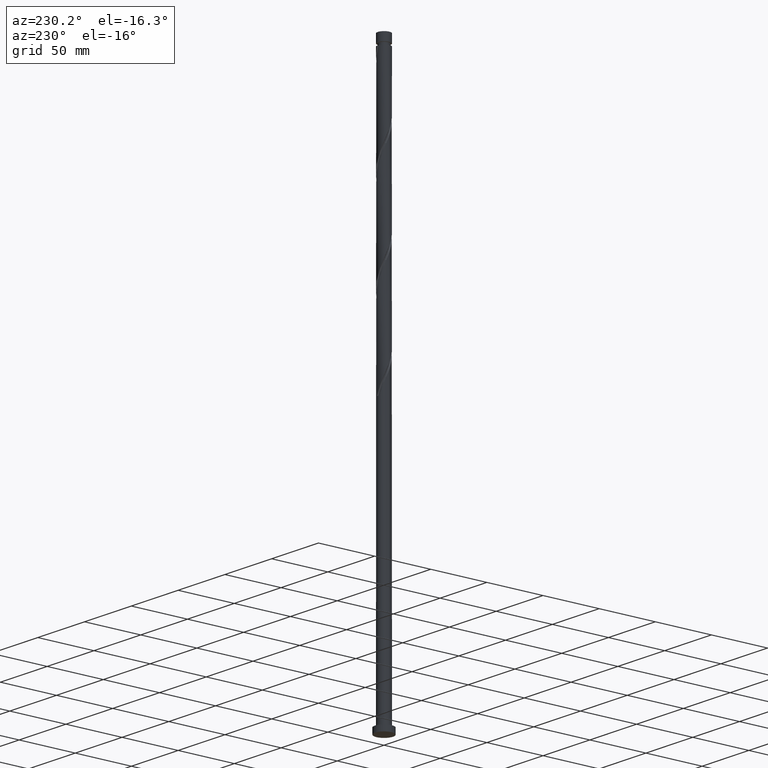
[diagram: clean part render]
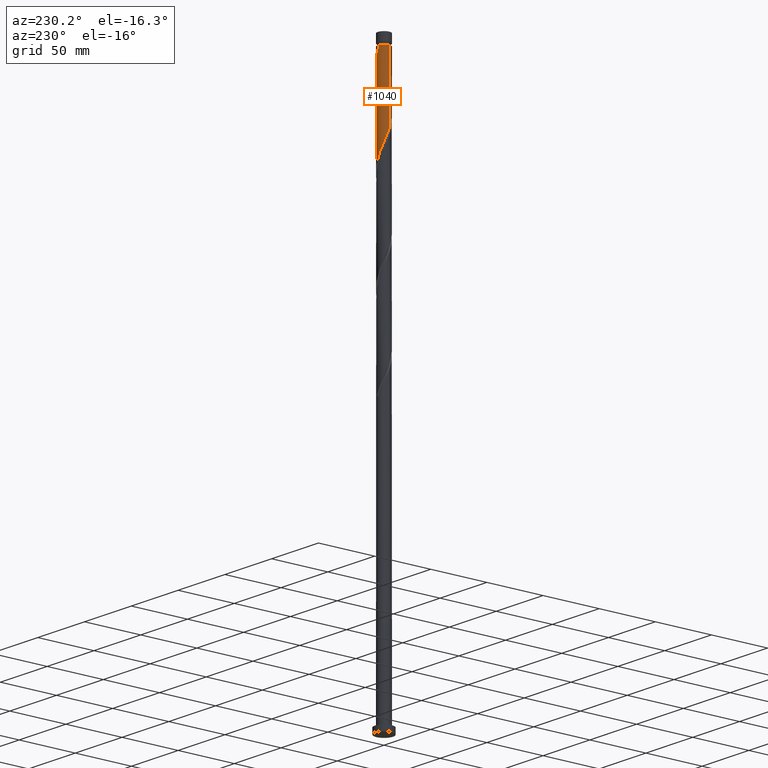
[diagram: same view with one face highlighted and labeled with its STEP entity id]
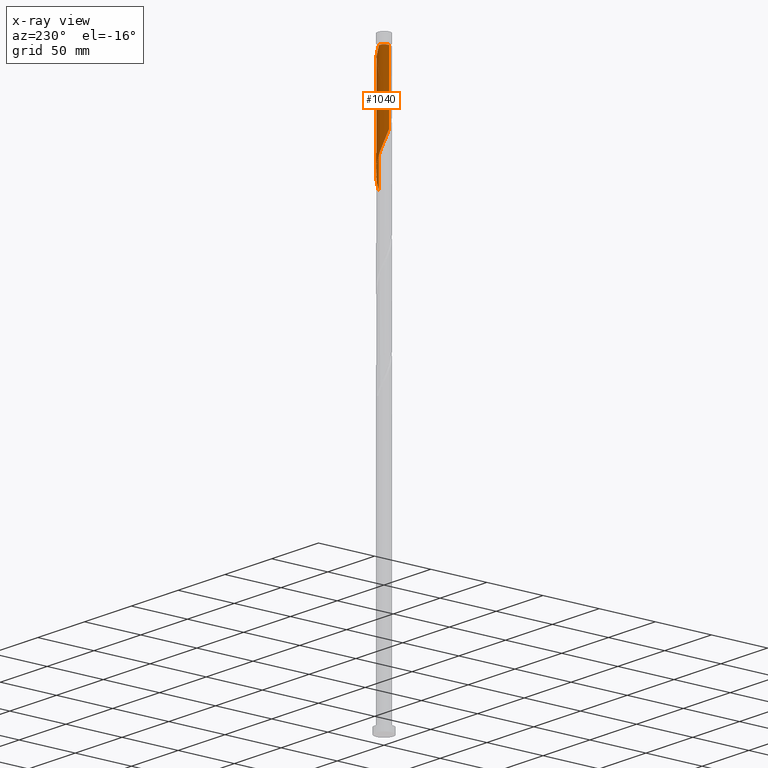
[diagram: x-ray of the same camera — body ghosted, the highlighted face saturated]
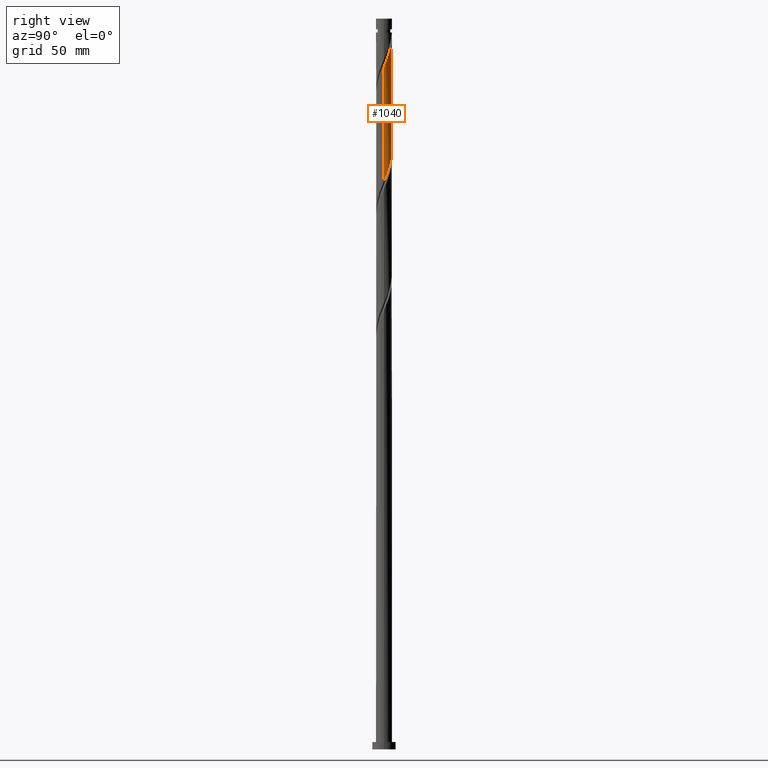
[diagram: same view with one face highlighted and labeled with its STEP entity id]
A machine part, auxiliary view. The second image highlights one B-rep face of the part: STEP entity #1040.
The next image is the same camera in x-ray: the body ghosted, the highlighted face saturated — about 0% of this face is hidden behind the body in this view.
A second angle (right view) of the same face is appended — the face is thin or edge-on in the first view.
In plain terms, the highlighted cylindrical surface (edge-blend (fillet) strip) has radius 5.5 mm, axis along (-0, -0, -1).
Its self-contained STEP definition (entity closure, byte-faithful):
#56 =( BOUNDED_CURVE ( )  B_SPLINE_CURVE ( 2, ( #384, #859, #700, #213, #2006, #560, #848, #1205, #1021, #1812, #710, #572, #1013, #377, #1840, #549, #1196, #1043, #1687, #242, #1532 ),
 .UNSPECIFIED., .F., .T. ) 
 B_SPLINE_CURVE_WITH_KNOTS ( ( 3, 2, 2, 2, 2, 2, 2, 2, 2, 2, 3 ),
 ( 0.6795286902180875943, 0.6796875000000000000, 0.6875000000000000000, 0.6953124999999998890, 0.7031249999999998890, 0.7109374999999998890, 0.7187499999999997780, 0.7265624999999997780, 0.7343749999999997780, 0.7421874999999996669, 0.7499999999999996669 ),
 .UNSPECIFIED. ) 
 CURVE ( )  GEOMETRIC_REPRESENTATION_ITEM ( )  RATIONAL_B_SPLINE_CURVE ( ( 0.9089165573359537786, 0.9090019243628583157, 0.9090909090909499168, 0.9047133878838560239, 0.9090909090909499168, 0.9047133878838560239, 0.9090909090909499168, 0.9047133878838560239, 0.9090909090909499168, 0.9047133878838560239, 0.9090909090909499168, 0.9047133878838560239, 0.9090909090909499168, 0.9047133878838560239, 0.9090909090909499168, 0.9047133878838560239, 0.9090909090909499168, 0.9047133878838560239, 0.9090909090909499168, 0.9047133878838562460, 0.9090909090909496948 ) ) 
 REPRESENTATION_ITEM ( '' )  );
#119 = CARTESIAN_POINT ( 'NONE',  ( -2.585781788888782629, 4.884380654232720609, 416.2954773461046898 ) ) ;
#130 = VERTEX_POINT ( 'NONE', #1371 ) ;
#193 = CARTESIAN_POINT ( 'NONE',  ( 5.500000000000000000, 3.802213082053248887E-15, 389.0044243241015351 ) ) ;
#201 = DIRECTION ( 'NONE',  ( -0.000000000000000000, -0.000000000000000000, -1.000000000000000000 ) ) ;
#213 = CARTESIAN_POINT ( 'NONE',  ( 5.497797479903722362, 0.5636175167221727511, 468.3788106794380610 ) ) ;
#235 = ORIENTED_EDGE ( 'NONE', *, *, #1122, .T. ) ;
#242 = CARTESIAN_POINT ( 'NONE',  ( -0.5636175167221491034, 5.497797479903722362, 489.2121440127713186 ) ) ;
#268 = LINE ( 'NONE', #944, #467 ) ;
#278 = CARTESIAN_POINT ( 'NONE',  ( -3.037386950224621796, 4.585224150966358714, 417.5975606794380610 ) ) ;
#289 = CARTESIAN_POINT ( 'NONE',  ( 4.585224150966358714, 3.037386950224620463, 396.7642273461047466 ) ) ;
#316 = CARTESIAN_POINT ( 'NONE',  ( 0.000000000000000000, 0.000000000000000000, 490.5142273461047466 ) ) ;
#328 = CARTESIAN_POINT ( 'NONE',  ( 5.294989651415503928, 1.583201322193242166, 392.8579773461047466 ) ) ;
#377 = CARTESIAN_POINT ( 'NONE',  ( 2.585781788888787958, 4.884380654232723273, 481.3996440127713754 ) ) ;
#384 = CARTESIAN_POINT ( 'NONE',  ( 5.500000000000005329, 9.188681614961969958E-16, 467.0240303681078444 ) ) ;
#463 = DIRECTION ( 'NONE',  ( -1.000000000000000000, 0.000000000000000000, 0.000000000000000000 ) ) ;
#467 = VECTOR ( 'NONE', #1428, 1000.000000000000000 ) ;
#469 = VERTEX_POINT ( 'NONE', #748 ) ;
#475 = CARTESIAN_POINT ( 'NONE',  ( -3.488992111560458742, 4.286067647699998595, 418.8996440127714322 ) ) ;
#506 = LINE ( 'NONE', #1301, #1207 ) ;
#549 = CARTESIAN_POINT ( 'NONE',  ( 1.583201322193246163, 5.294989651415510146, 484.0038106794380042 ) ) ;
#560 = CARTESIAN_POINT ( 'NONE',  ( 5.282202520096287657, 1.625354844912400676, 470.9829773461046898 ) ) ;
#572 = CARTESIAN_POINT ( 'NONE',  ( 3.488992111560461851, 4.286067647700003924, 478.7954773461048035 ) ) ;
#608 = CARTESIAN_POINT ( 'NONE',  ( 3.523043465120597961, 4.258122424034184839, 400.6704773461046329 ) ) ;
#621 = CARTESIAN_POINT ( 'NONE',  ( 3.904555556410298500, 3.873557267797324233, 399.3683940127715459 ) ) ;
#634 = CARTESIAN_POINT ( 'NONE',  ( -0.5197793165553465933, 5.502115165758800330, 411.0871440127713186 ) ) ;
#683 = CIRCLE ( 'NONE', #1869, 5.499999999999951150 ) ;
#700 = CARTESIAN_POINT ( 'NONE',  ( 5.499956322831262234, 0.02191910008340954355, 467.0767273461046329 ) ) ;
#710 = CARTESIAN_POINT ( 'NONE',  ( 3.873557267797329562, 3.904555556410300721, 477.4933940127713186 ) ) ;
#748 = CARTESIAN_POINT ( 'NONE',  ( -1.094486180817309195, 5.390000000000001457, 490.5142273461047466 ) ) ;
#772 = CARTESIAN_POINT ( 'NONE',  ( -1.051490319374294602, 5.398552408587152129, 412.3892273461046898 ) ) ;
#788 =( BOUNDED_CURVE ( )  B_SPLINE_CURVE ( 2, ( #1744, #1304, #1917, #1608, #1763, #1730, #941, #1938, #2067, #1138, #805, #475, #278, #119, #1295, #1453, #772, #634, #1905, #2094, #2080, #1415, #1440, #928, #2055, #608, #621, #1119, #289, #1269, #1595, #328, #1252, #796, #1891 ),
 .UNSPECIFIED., .F., .T. ) 
 B_SPLINE_CURVE_WITH_KNOTS ( ( 3, 2, 2, 2, 2, 2, 2, 2, 2, 2, 2, 2, 2, 2, 2, 2, 2, 3 ),
 ( 0.4295286902180877053, 0.4296875000000000000, 0.4375000000000000000, 0.4453125000000000000, 0.4531250000000000000, 0.4609375000000000000, 0.4687500000000000000, 0.4765625000000000000, 0.4843750000000000000, 0.4921875000000000000, 0.5000000000000000000, 0.5078125000000000000, 0.5156250000000000000, 0.5234375000000000000, 0.5312500000000000000, 0.5390625000000000000, 0.5468750000000000000, 0.5545286902180870392 ),
 .UNSPECIFIED. ) 
 CURVE ( )  GEOMETRIC_REPRESENTATION_ITEM ( )  RATIONAL_B_SPLINE_CURVE ( ( 0.9089165573359492267, 0.9090019243628537637, 0.9090909090909452539, 0.9047133878838512500, 0.9090909090909452539, 0.9047133878838512500, 0.9090909090909452539, 0.9047133878838512500, 0.9090909090909452539, 0.9047133878838512500, 0.9090909090909452539, 0.9047133878838512500, 0.9090909090909452539, 0.9047133878838512500, 0.9090909090909452539, 0.9047133878838512500, 0.9090909090909452539, 0.9047133878838512500, 0.9090909090909452539, 0.9047133878838512500, 0.9090909090909452539, 0.9047133878838512500, 0.9090909090909452539, 0.9047133878838512500, 0.9090909090909452539, 0.9047133878838512500, 0.9090909090909452539, 0.9047133878838512500, 0.9090909090909452539, 0.9047133878838512500, 0.9090909090909452539, 0.9047133878838512500, 0.9090909090909452539, 0.9048023726119431842, 0.9089165573359484496 ) ) 
 REPRESENTATION_ITEM ( '' )  );
#796 = CARTESIAN_POINT ( 'NONE',  ( 5.499999999999998224, 0.5306389821094062986, 390.2804044295176595 ) ) ;
#805 = CARTESIAN_POINT ( 'NONE',  ( -3.873557267797324233, 3.904555556410299388, 420.2017273461047466 ) ) ;
#848 = CARTESIAN_POINT ( 'NONE',  ( 5.072908999915568984, 2.124992771417276494, 472.2850606794380610 ) ) ;
#859 = CARTESIAN_POINT ( 'NONE',  ( 5.500000000000005329, 0.01095959355846088702, 467.0503839226252580 ) ) ;
#928 = CARTESIAN_POINT ( 'NONE',  ( 2.624630697922147871, 4.863615479734846758, 403.2746440127713754 ) ) ;
#939 = EDGE_LOOP ( 'NONE', ( #1447, #235, #1606, #995, #1923 ) ) ;
#941 = CARTESIAN_POINT ( 'NONE',  ( -5.072908999915564543, 2.124992771417274717, 425.4100606794381179 ) ) ;
#944 = CARTESIAN_POINT ( 'NONE',  ( 5.500000000000000000, 6.735557395310442023E-16, 500.0000000000000000 ) ) ;
#974 = VERTEX_POINT ( 'NONE', #1811 ) ;
#995 = ORIENTED_EDGE ( 'NONE', *, *, #2078, .F. ) ;
#1001 = CYLINDRICAL_SURFACE ( 'NONE', #1618, 5.500000000000000000 ) ;
#1013 = CARTESIAN_POINT ( 'NONE',  ( 3.037386950224624904, 4.585224150966364043, 480.0975606794380042 ) ) ;
#1021 = CARTESIAN_POINT ( 'NONE',  ( 4.560868951884520683, 3.073837081521375136, 474.8892273461046898 ) ) ;
#1040 = ADVANCED_FACE ( 'NONE', ( #1484 ), #1001, .T. ) ;
#1043 = CARTESIAN_POINT ( 'NONE',  ( 0.5197793165553485917, 5.502115165758805659, 486.6079773461046898 ) ) ;
#1119 = CARTESIAN_POINT ( 'NONE',  ( 4.286067647700001260, 3.488992111560456078, 398.0663106794381179 ) ) ;
#1122 = EDGE_CURVE ( 'NONE', #130, #2100, #268, .T. ) ;
#1138 = CARTESIAN_POINT ( 'NONE',  ( -4.258122424034185727, 3.523043465120596629, 421.5038106794381747 ) ) ;
#1162 = EDGE_CURVE ( 'NONE', #130, #469, #56, .T. ) ;
#1196 = CARTESIAN_POINT ( 'NONE',  ( 1.051490319374299931, 5.398552408587157458, 485.3058940127713754 ) ) ;
#1205 = CARTESIAN_POINT ( 'NONE',  ( 4.863615479734852087, 2.624630697922146982, 473.5871440127714322 ) ) ;
#1207 = VECTOR ( 'NONE', #1981, 1000.000000000000000 ) ;
#1229 = EDGE_CURVE ( 'NONE', #1467, #469, #683, .T. ) ;
#1252 = CARTESIAN_POINT ( 'NONE',  ( 5.398552408587152129, 1.051490319374296156, 391.5558940127713754 ) ) ;
#1267 = EDGE_CURVE ( 'NONE', #974, #2100, #788, .T. ) ;
#1269 = CARTESIAN_POINT ( 'NONE',  ( 4.884380654232719721, 2.585781788888782629, 395.4621440127714322 ) ) ;
#1295 = CARTESIAN_POINT ( 'NONE',  ( -2.084491555541012175, 5.089685152824110936, 414.9933940127714322 ) ) ;
#1301 = CARTESIAN_POINT ( 'NONE',  ( -5.500000000000000000, 0.000000000000000000, 500.0000000000000000 ) ) ;
#1304 = CARTESIAN_POINT ( 'NONE',  ( -5.499999999999999112, 0.01095959355847188690, 430.6447374362508071 ) ) ;
#1371 = CARTESIAN_POINT ( 'NONE',  ( 5.500000000000004441, 9.188681614961969958E-16, 467.0240303681078444 ) ) ;
#1415 = CARTESIAN_POINT ( 'NONE',  ( 1.625354844912401564, 5.282202520096280551, 405.8788106794380042 ) ) ;
#1428 = DIRECTION ( 'NONE',  ( -0.000000000000000000, -0.000000000000000000, -1.000000000000000000 ) ) ;
#1440 = CARTESIAN_POINT ( 'NONE',  ( 2.124992771417277382, 5.072908999915563655, 404.5767273461048035 ) ) ;
#1447 = ORIENTED_EDGE ( 'NONE', *, *, #1162, .F. ) ;
#1453 = CARTESIAN_POINT ( 'NONE',  ( -1.583201322193242389, 5.294989651415503928, 413.6913106794380610 ) ) ;
#1462 = DIRECTION ( 'NONE',  ( -0.000000000000000000, -0.000000000000000000, -1.000000000000000000 ) ) ;
#1467 = VERTEX_POINT ( 'NONE', #1753 ) ;
#1484 = FACE_OUTER_BOUND ( 'NONE', #939, .T. ) ;
#1532 = CARTESIAN_POINT ( 'NONE',  ( -1.094486180817309195, 5.390000000000000568, 490.5142273461047466 ) ) ;
#1595 = CARTESIAN_POINT ( 'NONE',  ( 5.089685152824112713, 2.084491555541010843, 394.1600606794381747 ) ) ;
#1606 = ORIENTED_EDGE ( 'NONE', *, *, #1267, .F. ) ;
#1608 = CARTESIAN_POINT ( 'NONE',  ( -5.497797479903716145, 0.5636175167221716409, 429.3163106794381179 ) ) ;
#1618 = AXIS2_PLACEMENT_3D ( 'NONE', #1655, #201, #1977 ) ;
#1655 = CARTESIAN_POINT ( 'NONE',  ( 0.000000000000000000, 0.000000000000000000, 500.0000000000000000 ) ) ;
#1687 = CARTESIAN_POINT ( 'NONE',  ( -0.02191910008340933191, 5.499956322831262234, 487.9100606794380042 ) ) ;
#1730 = CARTESIAN_POINT ( 'NONE',  ( -5.282202520096279663, 1.625354844912402896, 426.7121440127714891 ) ) ;
#1744 = CARTESIAN_POINT ( 'NONE',  ( -5.500000000000000000, -3.408944964252643064E-15, 430.6710909907681071 ) ) ;
#1753 = CARTESIAN_POINT ( 'NONE',  ( -5.499999999999951150, 0.000000000000000000, 490.5142273461047466 ) ) ;
#1763 = CARTESIAN_POINT ( 'NONE',  ( -5.389999999999999680, 1.094486180817287435, 428.0142273461048035 ) ) ;
#1811 = CARTESIAN_POINT ( 'NONE',  ( -5.500000000000000000, -3.408944964252643064E-15, 430.6710909907681071 ) ) ;
#1812 = CARTESIAN_POINT ( 'NONE',  ( 4.258122424034191056, 3.523043465120599294, 476.1913106794380610 ) ) ;
#1840 = CARTESIAN_POINT ( 'NONE',  ( 2.084491555541014840, 5.089685152824117154, 482.7017273461046898 ) ) ;
#1869 = AXIS2_PLACEMENT_3D ( 'NONE', #316, #1462, #463 ) ;
#1891 = CARTESIAN_POINT ( 'NONE',  ( 5.500000000000000000, 3.802213082053248887E-15, 389.0044243241015351 ) ) ;
#1905 = CARTESIAN_POINT ( 'NONE',  ( 0.02191910008341267993, 5.499956322831258682, 409.7850606794381179 ) ) ;
#1917 = CARTESIAN_POINT ( 'NONE',  ( -5.499956322831258682, 0.02191910008341289504, 430.6183940127714322 ) ) ;
#1923 = ORIENTED_EDGE ( 'NONE', *, *, #1229, .T. ) ;
#1938 = CARTESIAN_POINT ( 'NONE',  ( -4.863615479734846758, 2.624630697922146982, 424.1079773461047466 ) ) ;
#1977 = DIRECTION ( 'NONE',  ( -1.000000000000000000, 0.000000000000000000, 0.000000000000000000 ) ) ;
#1981 = DIRECTION ( 'NONE',  ( -0.000000000000000000, -0.000000000000000000, -1.000000000000000000 ) ) ;
#2006 = CARTESIAN_POINT ( 'NONE',  ( 5.390000000000004121, 1.094486180817286769, 469.6808940127714322 ) ) ;
#2055 = CARTESIAN_POINT ( 'NONE',  ( 3.073837081521375580, 4.560868951884516243, 401.9725606794381747 ) ) ;
#2067 = CARTESIAN_POINT ( 'NONE',  ( -4.560868951884518907, 3.073837081521372472, 422.8058940127714891 ) ) ;
#2078 = EDGE_CURVE ( 'NONE', #1467, #974, #506, .T. ) ;
#2080 = CARTESIAN_POINT ( 'NONE',  ( 1.094486180817288101, 5.389999999999999680, 407.1808940127713754 ) ) ;
#2094 = CARTESIAN_POINT ( 'NONE',  ( 0.5636175167221718629, 5.497797479903716145, 408.4829773461048035 ) ) ;
#2100 = VERTEX_POINT ( 'NONE', #193 ) ;